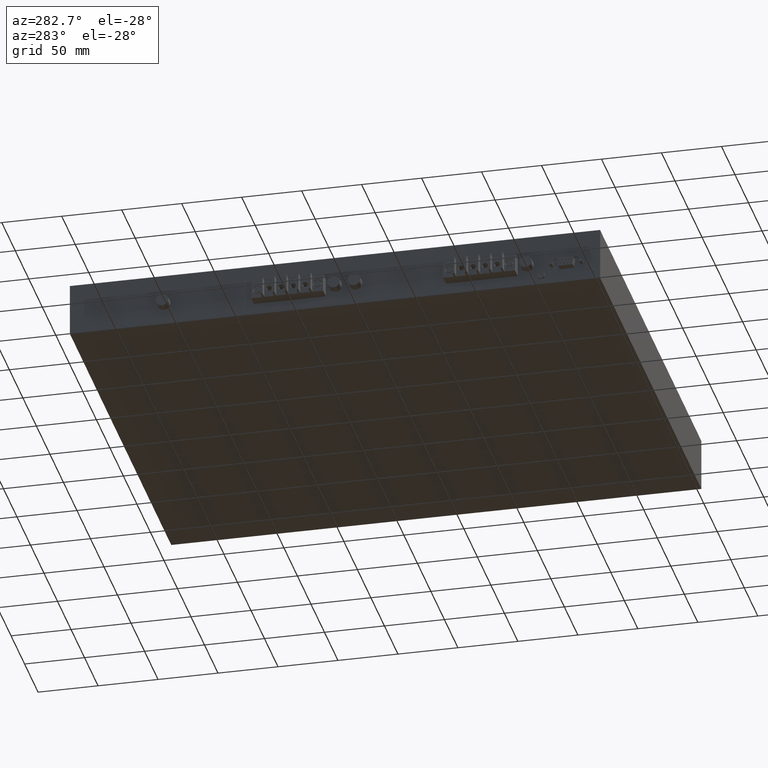
[diagram: clean part render]
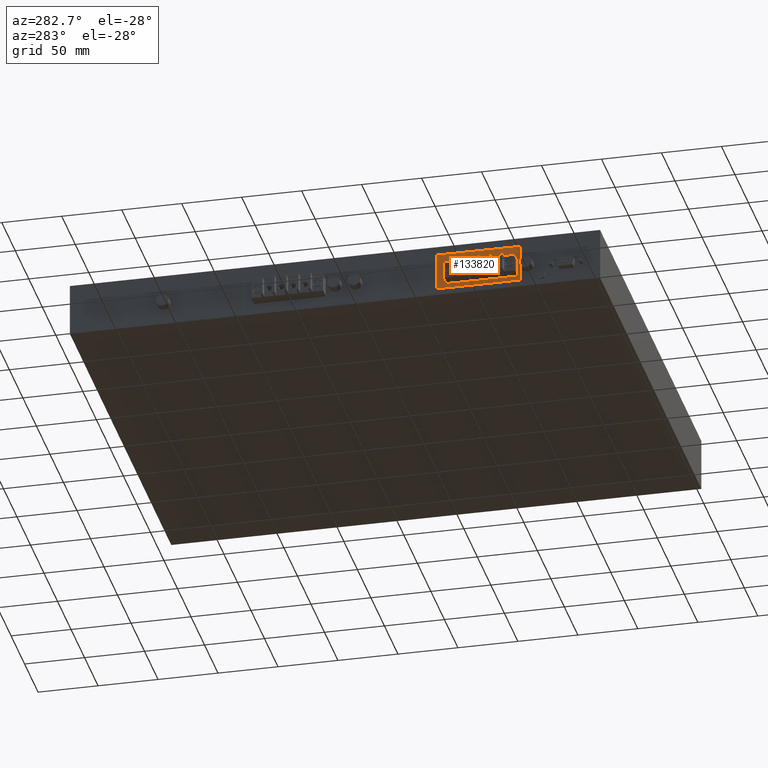
[diagram: same view with one face highlighted and labeled with its STEP entity id]
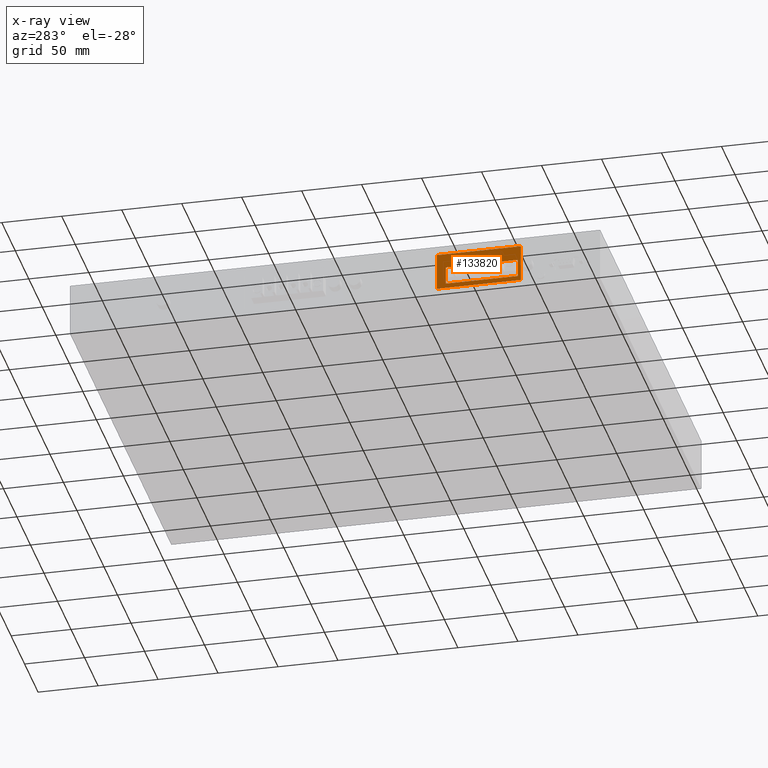
[diagram: x-ray of the same camera — body ghosted, the highlighted face saturated]
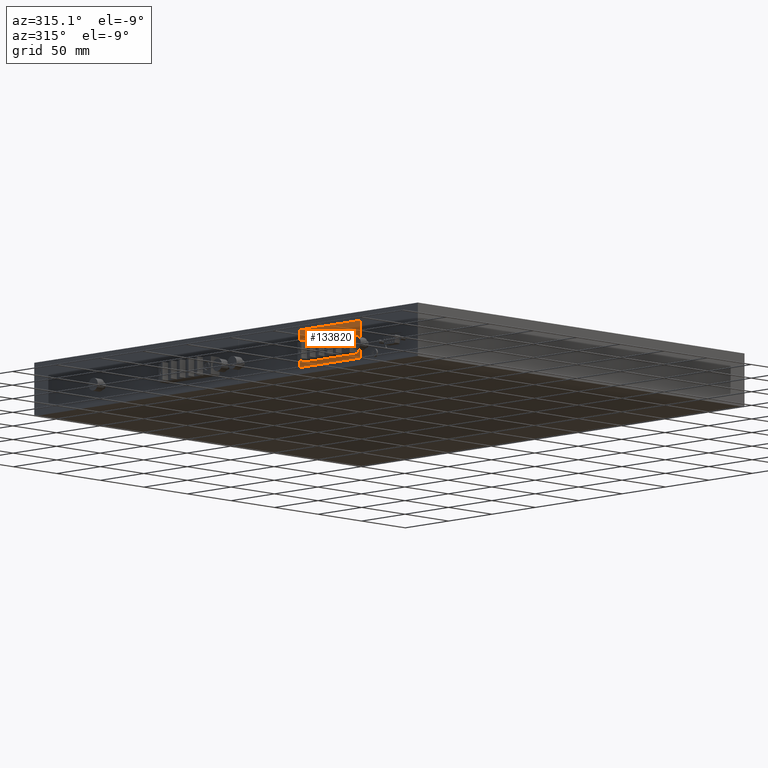
[diagram: same view with one face highlighted and labeled with its STEP entity id]
A machine part, auxiliary view. The second image highlights one B-rep face of the part: STEP entity #133820.
The next image is the same camera in x-ray: the body ghosted, the highlighted face saturated — about 0% of this face is hidden behind the body in this view.
A second angle (auxiliary view) of the same face is appended — the face is thin or edge-on in the first view.
In plain terms, the highlighted planar face has unit normal (-1, 0, 0).
Its self-contained STEP definition (entity closure, byte-faithful):
#65150=CARTESIAN_POINT('',(-152.093986957435,-15.0963677763395,
0.199999999980264));
#65160=VERTEX_POINT('',#65150);
#65190=CARTESIAN_POINT('',(-152.093986957435,0.,0.199999999980264));
#65200=DIRECTION('',(1.38777878078145E-16,-1.,0.));
#65210=VECTOR('',#65200,1.);
#65220=LINE('',#65190,#65210);
#65230=CARTESIAN_POINT('',(-152.093986957435,-29.8963677763395,
0.199999999980264));
#65240=VERTEX_POINT('',#65230);
#65250=EDGE_CURVE('',#65160,#65240,#65220,.T.);
#67970=CARTESIAN_POINT('',(-92.0939869574352,-15.0963677763395,
0.199999999980264));
#67980=VERTEX_POINT('',#67970);
#68150=CARTESIAN_POINT('',(-92.0939869574352,-29.8963677763395,
0.199999999980264));
#68160=VERTEX_POINT('',#68150);
#68190=CARTESIAN_POINT('',(-92.0939869574352,0.,0.199999999980264));
#68200=DIRECTION('',(-1.38777878078145E-16,1.,0.));
#68210=VECTOR('',#68200,1.);
#68220=LINE('',#68190,#68210);
#68230=EDGE_CURVE('',#68160,#67980,#68220,.T.);
#103500=CARTESIAN_POINT('',(0.,-15.0963677763395,0.199999999980264));
#103510=DIRECTION('',(-1.,-1.38777878078145E-16,0.));
#103520=VECTOR('',#103510,1.);
#103530=LINE('',#103500,#103520);
#103540=EDGE_CURVE('',#67980,#65160,#103530,.T.);
#128470=CARTESIAN_POINT('',(-154.593986957435,0.,0.199999999980264));
#128480=DIRECTION('',(0.,1.,0.));
#128490=VECTOR('',#128480,1.);
#128500=LINE('',#128470,#128490);
#128510=CARTESIAN_POINT('',(-154.593986957435,-33.7963677763396,
0.199999999980264));
#128520=VERTEX_POINT('',#128510);
#128530=CARTESIAN_POINT('',(-154.593986957435,-2.79636777633966,
0.199999999980264));
#128540=VERTEX_POINT('',#128530);
#128550=EDGE_CURVE('',#128520,#128540,#128500,.T.);
#128850=CARTESIAN_POINT('',(0.,-33.7963677763396,0.199999999980264));
#128860=DIRECTION('',(-1.,0.,0.));
#128870=VECTOR('',#128860,1.);
#128880=LINE('',#128850,#128870);
#128890=CARTESIAN_POINT('',(-84.593986957435,-33.7963677763396,
0.199999999980264));
#128900=VERTEX_POINT('',#128890);
#128910=EDGE_CURVE('',#128900,#128520,#128880,.T.);
#129090=CARTESIAN_POINT('',(-84.593986957435,0.,0.199999999980264));
#129100=DIRECTION('',(0.,-1.,0.));
#129110=VECTOR('',#129100,1.);
#129120=LINE('',#129090,#129110);
#129130=CARTESIAN_POINT('',(-84.593986957435,-2.79636777633966,
0.199999999980264));
#129140=VERTEX_POINT('',#129130);
#129150=EDGE_CURVE('',#129140,#128900,#129120,.T.);
#129330=CARTESIAN_POINT('',(0.,-2.79636777633966,0.199999999980264));
#129340=DIRECTION('',(1.,0.,0.));
#129350=VECTOR('',#129340,1.);
#129360=LINE('',#129330,#129350);
#129370=EDGE_CURVE('',#128540,#129140,#129360,.T.);
#133600=CARTESIAN_POINT('',(-82.843920807435,-34.5714339263396,
0.199999999980264));
#133610=DIRECTION('',(0.,0.,-1.));
#133620=DIRECTION('',(-1.,0.,0.));
#133630=AXIS2_PLACEMENT_3D('',#133600,#133610,#133620);
#133640=PLANE('',#133630);
#133650=ORIENTED_EDGE('',*,*,#68230,.T.);
#133660=CARTESIAN_POINT('',(0.,-29.8963677763395,0.199999999980264));
#133670=DIRECTION('',(-1.,-1.38777878078145E-16,0.));
#133680=VECTOR('',#133670,1.);
#133690=LINE('',#133660,#133680);
#133700=EDGE_CURVE('',#68160,#65240,#133690,.T.);
#133710=ORIENTED_EDGE('',*,*,#133700,.F.);
#133720=ORIENTED_EDGE('',*,*,#65250,.T.);
#133730=ORIENTED_EDGE('',*,*,#103540,.T.);
#133740=EDGE_LOOP('',(#133730,#133720,#133710,#133650));
#133750=FACE_BOUND('',#133740,.T.);
#133760=ORIENTED_EDGE('',*,*,#129150,.T.);
#133770=ORIENTED_EDGE('',*,*,#129370,.T.);
#133780=ORIENTED_EDGE('',*,*,#128550,.T.);
#133790=ORIENTED_EDGE('',*,*,#128910,.T.);
#133800=EDGE_LOOP('',(#133790,#133780,#133770,#133760));
#133810=FACE_OUTER_BOUND('',#133800,.T.);
#133820=ADVANCED_FACE('',(#133750,#133810),#133640,.T.);